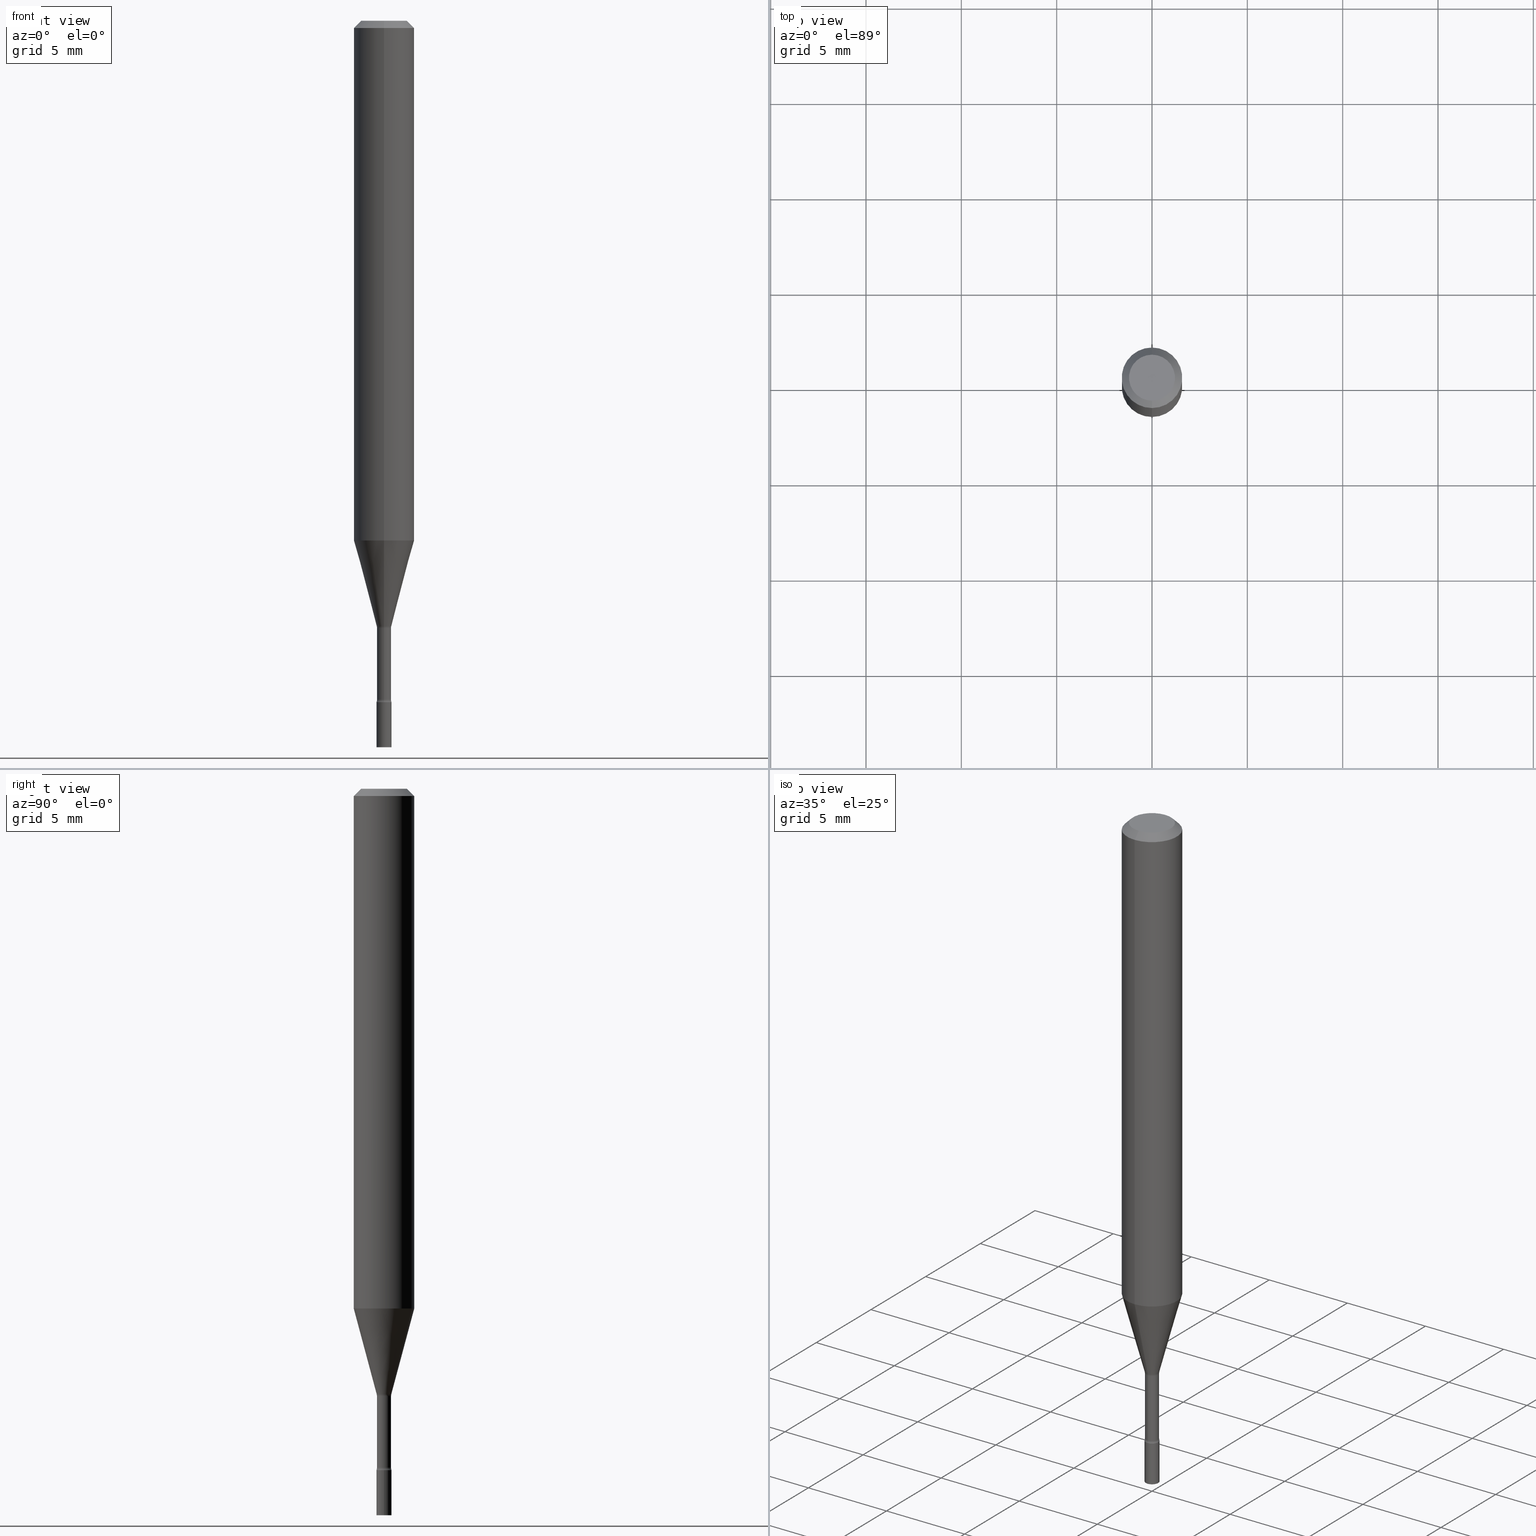
[diagram: canonical four-view strip — front | top / right | iso, engineering-drawing reading convention]
A machine part, canonical four-view strip (front | top / right | iso — engineering-drawing reading convention). The complete STEP part file that produces these views, byte-faithful:
ISO-10303-21;
HEADER;
FILE_DESCRIPTION (( 'STEP AP203' ),
    '1' );
FILE_NAME ('04271.STEP',
    '2024-03-08T22:44:06',
    ( '' ),
    ( '' ),
    'SwSTEP 2.0',
    'SolidWorks 2023',
    '' );
FILE_SCHEMA (( 'CONFIG_CONTROL_DESIGN' ));
ENDSEC;

DATA;
#1 = DATE_AND_TIME ( #243, #246 ) ;
#2 = CIRCLE ( 'NONE', #154, 0.01500000000000001853 ) ;
#3 = CC_DESIGN_SECURITY_CLASSIFICATION ( #222, ( #389 ) ) ;
#4 = CYLINDRICAL_SURFACE ( 'NONE', #395, 0.01549999999999999989 ) ;
#5 = CARTESIAN_POINT ( 'NONE',  ( 3.066547987305471395E-29, -4.378241368784279827E-15, -1.253974787463811191 ) ) ;
#6 = ADVANCED_FACE ( 'NONE', ( #87 ), #211, .T. ) ;
#7 = DIRECTION ( 'NONE',  ( 2.438088387897960049E-29, -3.491481338843145188E-15, -1.000000000000000000 ) ) ;
#8 = COORDINATED_UNIVERSAL_TIME_OFFSET ( 5, 0, .BEHIND. ) ;
#9 = CARTESIAN_POINT ( 'NONE',  ( -4.364351673553655384E-16, -0.06250000000000376088, -1.073048163777072794 ) ) ;
#10 = CIRCLE ( 'NONE', #74, 0.01549999999999999989 ) ;
#11 = EDGE_LOOP ( 'NONE', ( #61, #32, #249, #147 ) ) ;
#12 = CIRCLE ( 'NONE', #125, 0.04749999999999999362 ) ;
#13 = LINE ( 'NONE', #342, #381 ) ;
#14 = ORIENTED_EDGE ( 'NONE', *, *, #507, .T. ) ;
#15 = FACE_OUTER_BOUND ( 'NONE', #385, .T. ) ;
#16 = ORIENTED_EDGE ( 'NONE', *, *, #250, .F. ) ;
#17 = EDGE_CURVE ( 'NONE', #76, #289, #215, .T. ) ;
#18 = FACE_OUTER_BOUND ( 'NONE', #261, .T. ) ;
#19 = AXIS2_PLACEMENT_3D ( 'NONE', #72, #280, #197 ) ;
#20 = LOCAL_TIME ( 17, 44, 6.000000000000000000, #349 ) ;
#21 = PRODUCT_DEFINITION_SHAPE ( 'NONE', 'NONE',  #453 ) ;
#22 = DIRECTION ( 'NONE',  ( -2.445462235734121314E-29, 3.491490748102966351E-15, 1.000000000000000000 ) ) ;
#23 = EDGE_LOOP ( 'NONE', ( #198, #497, #335, #399 ) ) ;
#24 = DIRECTION ( 'NONE',  ( -6.982962677686265922E-15, -1.000000000000000000, 4.370956789862821150E-15 ) ) ;
#25 = EDGE_CURVE ( 'NONE', #263, #91, #457, .T. ) ;
#26 = CARTESIAN_POINT ( 'NONE',  ( 3.668193353601189100E-31, -5.237236122154459880E-17, -0.01500000000000003067 ) ) ;
#27 = CLOSED_SHELL ( 'NONE', ( #95, #158, #92, #377, #454, #398, #194, #402, #474, #151, #258, #219, #104, #368 ) ) ;
#28 = ORIENTED_EDGE ( 'NONE', *, *, #344, .F. ) ;
#29 = AXIS2_PLACEMENT_3D ( 'NONE', #128, #406, #169 ) ;
#30 = CC_DESIGN_APPROVAL ( #383, ( #389 ) ) ;
#31 = DIRECTION ( 'NONE',  ( 1.000000000000000000, -6.982962677686238312E-15, 0.000000000000000000 ) ) ;
#32 = ORIENTED_EDGE ( 'NONE', *, *, #467, .T. ) ;
#33 = DIRECTION ( 'NONE',  ( -2.445462235734121314E-29, 3.491490748102966351E-15, 1.000000000000000000 ) ) ;
#34 = EDGE_CURVE ( 'NONE', #214, #167, #302, .T. ) ;
#35 = DIRECTION ( 'NONE',  ( -2.445462235734121314E-29, 3.491490748102966351E-15, 1.000000000000000000 ) ) ;
#36 = CONICAL_SURFACE ( 'NONE', #295, 0.01506111260566398054, 0.2617993877991501295 ) ;
#37 = DIRECTION ( 'NONE',  ( 1.000000000000000000, -6.982962677686266711E-15, 4.876176775795935232E-29 ) ) ;
#38 = CC_DESIGN_APPROVAL ( #234, ( #222 ) ) ;
#39 = CARTESIAN_POINT ( 'NONE',  ( -4.287811248607203282E-16, -0.06250000000000005551, -0.01499999999999981209 ) ) ;
#40 = PERSON_AND_ORGANIZATION ( #127, #374 ) ;
#41 = PRODUCT_RELATED_PRODUCT_CATEGORY ( 'detail', '', ( #237 ) ) ;
#42 = CARTESIAN_POINT ( 'NONE',  ( 4.440892098500886486E-16, 0.06249999999999623218, -1.073048163777073238 ) ) ;
#43 = APPLICATION_CONTEXT ( 'configuration controlled 3d designs of mechanical parts and assemblies' ) ;
#44 = CYLINDRICAL_SURFACE ( 'NONE', #183, 0.01455000000000000737 ) ;
#45 = AXIS2_PLACEMENT_3D ( 'NONE', #69, #33, #316 ) ;
#46 = CIRCLE ( 'NONE', #89, 0.01500000000000002720 ) ;
#47 = DIRECTION ( 'NONE',  ( 1.000000000000000000, -6.982962677686266711E-15, 4.876176775795935232E-29 ) ) ;
#48 = CARTESIAN_POINT ( 'NONE',  ( -1.016021069603009763E-16, -0.01455000000000490450, -1.401746667724196538 ) ) ;
#49 = ADVANCED_BREP_SHAPE_REPRESENTATION ( '04271', ( #182, #181, #423 ), #265 ) ;
#50 = EDGE_CURVE ( 'NONE', #167, #186, #206, .T. ) ;
#51 = APPROVAL_ROLE ( '' ) ;
#52 = DIRECTION ( 'NONE',  ( -6.982962677686265922E-15, -1.000000000000000000, 0.000000000000000000 ) ) ;
#53 = APPLICATION_CONTEXT ( 'configuration controlled 3d designs of mechanical parts and assemblies' ) ;
#54 = APPROVAL_DATE_TIME ( #419, #234 ) ;
#55 = CARTESIAN_POINT ( 'NONE',  ( 3.840629472727447874E-16, 0.04749999999999999362, -1.947592745229184365E-16 ) ) ;
#56 = AXIS2_PLACEMENT_3D ( 'NONE', #425, #62, #307 ) ;
#57 = AXIS2_PLACEMENT_3D ( 'NONE', #511, #235, #392 ) ;
#58 = EDGE_LOOP ( 'NONE', ( #190, #85, #321, #257 ) ) ;
#59 = CARTESIAN_POINT ( 'NONE',  ( 0.01549999999999999989, -1.082359215041371286E-16, 7.558074002483699918E-31 ) ) ;
#60 = EDGE_CURVE ( 'NONE', #247, #289, #203, .T. ) ;
#61 = ORIENTED_EDGE ( 'NONE', *, *, #119, .F. ) ;
#62 = DIRECTION ( 'NONE',  ( -2.445462235734121034E-29, 3.491490748102966351E-15, 1.000000000000000000 ) ) ;
#63 = ORIENTED_EDGE ( 'NONE', *, *, #305, .T. ) ;
#64 = ORIENTED_EDGE ( 'NONE', *, *, #462, .F. ) ;
#65 = DIRECTION ( 'NONE',  ( 1.000000000000000000, -6.982962677686238312E-15, 0.000000000000000000 ) ) ;
#66 = AXIS2_PLACEMENT_3D ( 'NONE', #111, #238, #313 ) ;
#67 = EDGE_LOOP ( 'NONE', ( #160, #501, #149, #360 ) ) ;
#68 = EDGE_CURVE ( 'NONE', #348, #110, #82, .T. ) ;
#69 = CARTESIAN_POINT ( 'NONE',  ( 3.066556226485386764E-29, -4.378229569809696209E-15, -1.253974787463811191 ) ) ;
#70 = EDGE_LOOP ( 'NONE', ( #422, #64, #292, #99 ) ) ;
#71 = CARTESIAN_POINT ( 'NONE',  ( 0.000000000000000000, 0.000000000000000000, 0.000000000000000000 ) ) ;
#72 = CARTESIAN_POINT ( 'NONE',  ( 3.668193353601189100E-31, -5.237236122154459880E-17, -0.01500000000000003067 ) ) ;
#73 = ORIENTED_EDGE ( 'NONE', *, *, #344, .T. ) ;
#74 = AXIS2_PLACEMENT_3D ( 'NONE', #227, #148, #52 ) ;
#75 = CIRCLE ( 'NONE', #288, 0.06250000000000000000 ) ;
#76 = VERTEX_POINT ( 'NONE', #327 ) ;
#77 = DIRECTION ( 'NONE',  ( 6.982962677686265922E-15, 1.000000000000000000, -3.483106191921935554E-15 ) ) ;
#78 = LINE ( 'NONE', #278, #98 ) ;
#79 = DIRECTION ( 'NONE',  ( 1.000000000000000000, 0.000000000000000000, 0.000000000000000000 ) ) ;
#80 = CARTESIAN_POINT ( 'NONE',  ( -1.016021069603045508E-16, -0.01455000000000438234, -1.253974787463811191 ) ) ;
#81 = ADVANCED_FACE ( 'NONE', ( #412 ), #4, .T. ) ;
#82 = CIRCLE ( 'NONE', #230, 0.01455000000000000390 ) ;
#83 = DIRECTION ( 'NONE',  ( -2.445462235734121314E-29, 3.491490748102966351E-15, 1.000000000000000000 ) ) ;
#84 = EDGE_LOOP ( 'NONE', ( #506, #161, #163, #282 ) ) ;
#85 = ORIENTED_EDGE ( 'NONE', *, *, #34, .T. ) ;
#86 = APPROVAL_DATE_TIME ( #476, #383 ) ;
#87 = FACE_OUTER_BOUND ( 'NONE', #359, .T. ) ;
#88 = VECTOR ( 'NONE', #105, 39.37007874015748143 ) ;
#89 = AXIS2_PLACEMENT_3D ( 'NONE', #334, #320, #120 ) ;
#90 = DIRECTION ( 'NONE',  ( -6.982962677686265922E-15, -1.000000000000000000, 0.000000000000000000 ) ) ;
#91 = VERTEX_POINT ( 'NONE', #48 ) ;
#92 = ADVANCED_FACE ( 'NONE', ( #517 ), #123, .F. ) ;
#93 = DIRECTION ( 'NONE',  ( -2.445462235734121314E-29, 3.491490748102966351E-15, 1.000000000000000000 ) ) ;
#94 = CARTESIAN_POINT ( 'NONE',  ( 3.057054004295166531E-29, -4.364686404263155979E-15, -1.250092501787273269 ) ) ;
#95 = ADVANCED_FACE ( 'NONE', ( #175 ), #427, .F. ) ;
#96 = VECTOR ( 'NONE', #332, 39.37007874015748143 ) ;
#97 = CARTESIAN_POINT ( 'NONE',  ( -1.051711872097511524E-16, -0.01506111260566834510, -1.250092501787273269 ) ) ;
#98 = VECTOR ( 'NONE', #150, 39.37007874015748143 ) ;
#99 = ORIENTED_EDGE ( 'NONE', *, *, #60, .T. ) ;
#100 = DIRECTION ( 'NONE',  ( -6.982962677686263555E-15, -1.000000000000000000, 0.000000000000000000 ) ) ;
#101 = ORIENTED_EDGE ( 'NONE', *, *, #384, .T. ) ;
#102 = ORIENTED_EDGE ( 'NONE', *, *, #420, .F. ) ;
#103 = DIRECTION ( 'NONE',  ( -2.445468806185136597E-29, 3.491481338843145583E-15, 1.000000000000000000 ) ) ;
#104 = ADVANCED_FACE ( 'NONE', ( #378 ), #44, .T. ) ;
#105 = DIRECTION ( 'NONE',  ( -2.445462235734121314E-29, 3.491490748102966351E-15, 1.000000000000000000 ) ) ;
#106 = CIRCLE ( 'NONE', #388, 0.01549999999999999989 ) ;
#107 = CARTESIAN_POINT ( 'NONE',  ( 4.364351673553919652E-16, 0.06249999999999995143, -0.01500000000000024751 ) ) ;
#108 = EDGE_LOOP ( 'NONE', ( #207, #73, #466, #450 ) ) ;
#109 = CYLINDRICAL_SURFACE ( 'NONE', #442, 0.01549999999999999989 ) ;
#110 = VERTEX_POINT ( 'NONE', #80 ) ;
#111 = CARTESIAN_POINT ( 'NONE',  ( 3.057054004295166531E-29, -4.364686404263155979E-15, -1.250092501787273269 ) ) ;
#112 = EDGE_CURVE ( 'NONE', #117, #186, #358, .T. ) ;
#113 = AXIS2_PLACEMENT_3D ( 'NONE', #456, #418, #345 ) ;
#114 = LOCAL_TIME ( 17, 44, 6.000000000000000000, #8 ) ;
#115 = DIRECTION ( 'NONE',  ( -2.445468806185136597E-29, 3.491481338843145583E-15, 1.000000000000000000 ) ) ;
#116 =( NAMED_UNIT ( * ) PLANE_ANGLE_UNIT ( ) SI_UNIT ( $, .RADIAN. ) );
#117 = VERTEX_POINT ( 'NONE', #42 ) ;
#118 = DIRECTION ( 'NONE',  ( -6.982962677686266711E-15, -1.000000000000000000, 0.000000000000000000 ) ) ;
#119 = EDGE_CURVE ( 'NONE', #494, #366, #323, .T. ) ;
#120 = DIRECTION ( 'NONE',  ( 7.105427357601001859E-15, 1.000000000000000000, 0.000000000000000000 ) ) ;
#121 = CARTESIAN_POINT ( 'NONE',  ( -0.01549999999999999989, 1.101341240428155280E-16, -7.624349389895103058E-31 ) ) ;
#122 = AXIS2_PLACEMENT_3D ( 'NONE', #480, #290, #294 ) ;
#123 = TOROIDAL_SURFACE ( 'NONE', #239, 0.02955000000000002763, 0.01500000000000001506 ) ;
#124 = CARTESIAN_POINT ( 'NONE',  ( 3.668193353601189100E-31, -5.237236122154459880E-17, -0.01500000000000003067 ) ) ;
#125 = AXIS2_PLACEMENT_3D ( 'NONE', #165, #473, #409 ) ;
#126 = ORIENTED_EDGE ( 'NONE', *, *, #60, .F. ) ;
#127 = PERSON ( 'UNSPECIFIED', 'UNSPECIFIED', 'UNSPECIFIED', ('UNSPECIFIED'), ('UNSPECIFIED'), ('UNSPECIFIED') ) ;
#128 = CARTESIAN_POINT ( 'NONE',  ( 2.624098761640674456E-29, -3.746537736096526862E-15, -1.073048163777073016 ) ) ;
#129 = ORIENTED_EDGE ( 'NONE', *, *, #17, .T. ) ;
#130 = CARTESIAN_POINT ( 'NONE',  ( -0.01549999999999999989, -4.964734001965696802E-15, -1.500000000000000222 ) ) ;
#131 = ADVANCED_FACE ( 'NONE', ( #293 ), #171, .T. ) ;
#132 = DIRECTION ( 'NONE',  ( -6.982962677686265922E-15, -1.000000000000000000, 3.491490748102966351E-15 ) ) ;
#133 = PERSON_AND_ORGANIZATION_ROLE ( 'creator' ) ;
#134 = ORIENTED_EDGE ( 'NONE', *, *, #384, .F. ) ;
#135 = VECTOR ( 'NONE', #435, 39.37007874015748143 ) ;
#136 = AXIS2_PLACEMENT_3D ( 'NONE', #317, #504, #355 ) ;
#137 = LINE ( 'NONE', #400, #373 ) ;
#138 = EDGE_LOOP ( 'NONE', ( #503, #352, #188, #394 ) ) ;
#139 = CARTESIAN_POINT ( 'NONE',  ( 2.755524256971568781E-16, 0.01506111260565961597, -1.250092501787273269 ) ) ;
#140 = DIRECTION ( 'NONE',  ( -6.982962677686265922E-15, -1.000000000000000000, 3.491490748102966351E-15 ) ) ;
#141 = ORIENTED_EDGE ( 'NONE', *, *, #520, .F. ) ;
#142 = AXIS2_PLACEMENT_3D ( 'NONE', #244, #441, #90 ) ;
#143 = CARTESIAN_POINT ( 'NONE',  ( 3.057054004295166531E-29, -4.364686404263155979E-15, -1.250092501787273269 ) ) ;
#144 = AXIS2_PLACEMENT_3D ( 'NONE', #124, #437, #439 ) ;
#145 = ORIENTED_EDGE ( 'NONE', *, *, #275, .F. ) ;
#146 = ORIENTED_EDGE ( 'NONE', *, *, #490, .F. ) ;
#147 = ORIENTED_EDGE ( 'NONE', *, *, #325, .F. ) ;
#148 = DIRECTION ( 'NONE',  ( -2.445462235734121314E-29, 3.491490748102966351E-15, 1.000000000000000000 ) ) ;
#149 = ORIENTED_EDGE ( 'NONE', *, *, #212, .F. ) ;
#150 = DIRECTION ( 'NONE',  ( -2.445462235734121314E-29, 3.491490748102966351E-15, 1.000000000000000000 ) ) ;
#151 = ADVANCED_FACE ( 'NONE', ( #448 ), #451, .F. ) ;
#152 = ORIENTED_EDGE ( 'NONE', *, *, #281, .F. ) ;
#153 = DIRECTION ( 'NONE',  ( -2.445462235734121314E-29, 3.491490748102966351E-15, 1.000000000000000000 ) ) ;
#154 = AXIS2_PLACEMENT_3D ( 'NONE', #301, #187, #100 ) ;
#155 = VERTEX_POINT ( 'NONE', #55 ) ;
#156 = CONICAL_SURFACE ( 'NONE', #173, 0.06250000000000000000, 0.7853981633974483900 ) ;
#157 = FACE_OUTER_BOUND ( 'NONE', #11, .T. ) ;
#158 = ADVANCED_FACE ( 'NONE', ( #15 ), #297, .T. ) ;
#159 = CARTESIAN_POINT ( 'NONE',  ( 3.668203209277704895E-29, -5.237222008264718177E-15, -1.500000000000000222 ) ) ;
#160 = ORIENTED_EDGE ( 'NONE', *, *, #354, .T. ) ;
#161 = ORIENTED_EDGE ( 'NONE', *, *, #228, .T. ) ;
#162 = FACE_OUTER_BOUND ( 'NONE', #270, .T. ) ;
#163 = ORIENTED_EDGE ( 'NONE', *, *, #436, .F. ) ;
#164 = EDGE_LOOP ( 'NONE', ( #300, #319 ) ) ;
#165 = CARTESIAN_POINT ( 'NONE',  ( 7.070678428697980061E-46, -1.009510920098064023E-31, -2.891346398802752133E-17 ) ) ;
#166 = EDGE_CURVE ( 'NONE', #91, #475, #2, .T. ) ;
#167 = VERTEX_POINT ( 'NONE', #97 ) ;
#168 = COORDINATED_UNIVERSAL_TIME_OFFSET ( 5, 0, .BEHIND. ) ;
#169 = DIRECTION ( 'NONE',  ( -6.982962677686265922E-15, -1.000000000000000000, 4.370956789862821150E-15 ) ) ;
#170 = PERSON_AND_ORGANIZATION ( #127, #374 ) ;
#171 = PLANE ( 'NONE',  #122 ) ;
#172 = CIRCLE ( 'NONE', #254, 0.01455000000000001084 ) ;
#173 = AXIS2_PLACEMENT_3D ( 'NONE', #26, #357, #77 ) ;
#174 = COORDINATED_UNIVERSAL_TIME_OFFSET ( 5, 0, .BEHIND. ) ;
#175 = FACE_OUTER_BOUND ( 'NONE', #23, .T. ) ;
#176 = ORIENTED_EDGE ( 'NONE', *, *, #177, .F. ) ;
#177 = EDGE_CURVE ( 'NONE', #167, #214, #274, .T. ) ;
#178 = APPLICATION_PROTOCOL_DEFINITION ( 'international standard', 'config_control_design', 1994, #43 ) ;
#179 = ORIENTED_EDGE ( 'NONE', *, *, #354, .F. ) ;
#180 = DIRECTION ( 'NONE',  ( -2.445468806185136597E-29, 3.491481338843145583E-15, 1.000000000000000000 ) ) ;
#181 = MANIFOLD_SOLID_BREP ( 'Body-Move/Copy2[2]', #27 ) ;
#182 = MANIFOLD_SOLID_BREP ( 'Body-Move/Copy2[1]', #356 ) ;
#183 = AXIS2_PLACEMENT_3D ( 'NONE', #438, #408, #477 ) ;
#184 = DIRECTION ( 'NONE',  ( -2.445462235734121314E-29, 3.491490748102966351E-15, 1.000000000000000000 ) ) ;
#185 = EDGE_CURVE ( 'NONE', #110, #348, #464, .T. ) ;
#186 = VERTEX_POINT ( 'NONE', #9 ) ;
#187 = DIRECTION ( 'NONE',  ( -1.000000000000000000, 6.982962677686265922E-15, -4.883557194083112340E-29 ) ) ;
#188 = ORIENTED_EDGE ( 'NONE', *, *, #275, .T. ) ;
#189 = DIRECTION ( 'NONE',  ( 1.839019923739599526E-15, 0.2588190451025248473, 0.9659258262890673130 ) ) ;
#190 = ORIENTED_EDGE ( 'NONE', *, *, #228, .F. ) ;
#191 = DATE_TIME_ROLE ( 'classification_date' ) ;
#192 = DIRECTION ( 'NONE',  ( -2.445462235734121314E-29, 3.491490748102966351E-15, 1.000000000000000000 ) ) ;
#193 = VECTOR ( 'NONE', #226, 39.37007874015748143 ) ;
#194 = ADVANCED_FACE ( 'NONE', ( #306 ), #36, .T. ) ;
#195 = DIRECTION ( 'NONE',  ( -1.000000000000000000, 6.982962677686265922E-15, -4.883557194083112340E-29 ) ) ;
#196 = DIRECTION ( 'NONE',  ( -2.445462235734121314E-29, 3.491490748102966351E-15, 1.000000000000000000 ) ) ;
#197 = DIRECTION ( 'NONE',  ( 6.982962677686265922E-15, 1.000000000000000000, -3.483106191921935554E-15 ) ) ;
#198 = ORIENTED_EDGE ( 'NONE', *, *, #34, .F. ) ;
#199 = AXIS2_PLACEMENT_3D ( 'NONE', #340, #262, #455 ) ;
#200 = CARTESIAN_POINT ( 'NONE',  ( -0.01549999999999999989, -4.964734001965696802E-15, -1.407000000000000028 ) ) ;
#201 = FACE_OUTER_BOUND ( 'NONE', #84, .T. ) ;
#202 = APPROVAL_STATUS ( 'not_yet_approved' ) ;
#203 = CIRCLE ( 'NONE', #213, 0.06250000000000000000 ) ;
#204 = LOCAL_TIME ( 17, 44, 6.000000000000000000, #168 ) ;
#205 = CALENDAR_DATE ( 2024, 8, 3 ) ;
#206 = LINE ( 'NONE', #209, #245 ) ;
#207 = ORIENTED_EDGE ( 'NONE', *, *, #25, .F. ) ;
#208 = PERSON_AND_ORGANIZATION_ROLE ( 'creator' ) ;
#209 = CARTESIAN_POINT ( 'NONE',  ( -1.051711872097511524E-16, -0.01506111260566834510, -1.250092501787273269 ) ) ;
#210 = LENGTH_MEASURE_WITH_UNIT ( LENGTH_MEASURE( 0.02539999999999999897 ), #370 );
#211 = PLANE ( 'NONE',  #328 ) ;
#212 = EDGE_CURVE ( 'NONE', #393, #366, #413, .T. ) ;
#213 = AXIS2_PLACEMENT_3D ( 'NONE', #256, #369, #416 ) ;
#214 = VERTEX_POINT ( 'NONE', #139 ) ;
#215 = LINE ( 'NONE', #39, #96 ) ;
#216 = ORIENTED_EDGE ( 'NONE', *, *, #310, .F. ) ;
#217 = CARTESIAN_POINT ( 'NONE',  ( 3.427918539985668469E-29, -4.894185521543194921E-15, -1.401746667724196538 ) ) ;
#218 = CC_DESIGN_PERSON_AND_ORGANIZATION_ASSIGNMENT ( #487, #296, ( #222 ) ) ;
#219 = ADVANCED_FACE ( 'NONE', ( #18 ), #286, .F. ) ;
#220 = SHAPE_DEFINITION_REPRESENTATION ( #21, #49 ) ;
#221 = AXIS2_PLACEMENT_3D ( 'NONE', #502, #195, #488 ) ;
#222 = SECURITY_CLASSIFICATION ( '', '', #379 ) ;
#223 = LINE ( 'NONE', #460, #440 ) ;
#224 = ORIENTED_EDGE ( 'NONE', *, *, #281, .T. ) ;
#225 = PERSON_AND_ORGANIZATION_ROLE ( 'design_supplier' ) ;
#226 = DIRECTION ( 'NONE',  ( -2.445468806185136877E-29, 3.491481338843145188E-15, 1.000000000000000000 ) ) ;
#227 = CARTESIAN_POINT ( 'NONE',  ( 3.440765365677909320E-29, -4.912527482580873462E-15, -1.407000000000000028 ) ) ;
#228 = EDGE_CURVE ( 'NONE', #214, #117, #223, .T. ) ;
#229 = CARTESIAN_POINT ( 'NONE',  ( 4.440892098500889444E-16, 0.06249999999999995143, -0.01500000000000024751 ) ) ;
#230 = AXIS2_PLACEMENT_3D ( 'NONE', #5, #372, #251 ) ;
#231 = AXIS2_PLACEMENT_3D ( 'NONE', #71, #196, #468 ) ;
#232 = DIRECTION ( 'NONE',  ( -6.982962677686265922E-15, -1.000000000000000000, 3.491490748102966351E-15 ) ) ;
#233 = ORIENTED_EDGE ( 'NONE', *, *, #467, .F. ) ;
#234 = APPROVAL ( #298, 'UNSPECIFIED' ) ;
#235 = DIRECTION ( 'NONE',  ( -2.445468806185136597E-29, 3.491481338843145583E-15, 1.000000000000000000 ) ) ;
#236 = EDGE_CURVE ( 'NONE', #514, #393, #426, .T. ) ;
#237 = PRODUCT ( '04271', '04271', '', ( #255 ) ) ;
#238 = DIRECTION ( 'NONE',  ( -2.445462235734121314E-29, 3.491490748102966351E-15, 1.000000000000000000 ) ) ;
#239 = AXIS2_PLACEMENT_3D ( 'NONE', #375, #338, #485 ) ;
#240 = APPROVAL_PERSON_ORGANIZATION ( #40, #324, #407 ) ;
#241 = UNCERTAINTY_MEASURE_WITH_UNIT (LENGTH_MEASURE( 1.000000000000000082E-05 ), #411, 'distance_accuracy_value', 'NONE');
#242 = CARTESIAN_POINT ( 'NONE',  ( 0.000000000000000000, 0.000000000000000000, 0.000000000000000000 ) ) ;
#243 = CALENDAR_DATE ( 2024, 8, 3 ) ;
#244 = CARTESIAN_POINT ( 'NONE',  ( 3.057054004295166531E-29, -4.364686404263155979E-15, -1.250092501787273269 ) ) ;
#245 = VECTOR ( 'NONE', #449, 39.37007874015749564 ) ;
#246 = LOCAL_TIME ( 17, 44, 6.000000000000000000, #518 ) ;
#247 = VERTEX_POINT ( 'NONE', #229 ) ;
#248 = DATE_TIME_ROLE ( 'creation_date' ) ;
#249 = ORIENTED_EDGE ( 'NONE', *, *, #236, .T. ) ;
#250 = EDGE_CURVE ( 'NONE', #475, #314, #106, .T. ) ;
#251 = DIRECTION ( 'NONE',  ( -6.982962677686266711E-15, -1.000000000000000000, 0.000000000000000000 ) ) ;
#252 = CARTESIAN_POINT ( 'NONE',  ( 0.01549999999999999989, -5.345457929768855342E-15, -1.500000000000000222 ) ) ;
#253 = DIRECTION ( 'NONE',  ( -1.000000000000000000, 6.982962677686265922E-15, -4.876176775795935793E-29 ) ) ;
#254 = AXIS2_PLACEMENT_3D ( 'NONE', #387, #192, #380 ) ;
#255 = MECHANICAL_CONTEXT ( 'NONE', #53, 'mechanical' ) ;
#256 = CARTESIAN_POINT ( 'NONE',  ( 3.668193353601189100E-31, -5.237236122154459880E-17, -0.01500000000000003067 ) ) ;
#257 = ORIENTED_EDGE ( 'NONE', *, *, #112, .F. ) ;
#258 = ADVANCED_FACE ( 'NONE', ( #493 ), #390, .F. ) ;
#259 = CARTESIAN_POINT ( 'NONE',  ( 1.067590460479894681E-16, 0.01454999999999511892, -1.401746667724196538 ) ) ;
#260 = PERSON_AND_ORGANIZATION ( #127, #374 ) ;
#261 = EDGE_LOOP ( 'NONE', ( #28, #152, #470, #308 ) ) ;
#262 = DIRECTION ( 'NONE',  ( -2.445462235734121314E-29, 3.491490748102966351E-15, 1.000000000000000000 ) ) ;
#263 = VERTEX_POINT ( 'NONE', #259 ) ;
#264 = AXIS2_PLACEMENT_3D ( 'NONE', #465, #353, #396 ) ;
#265 =( GEOMETRIC_REPRESENTATION_CONTEXT ( 3 ) GLOBAL_UNCERTAINTY_ASSIGNED_CONTEXT ( ( #241 ) ) GLOBAL_UNIT_ASSIGNED_CONTEXT ( ( #411, #116, #326 ) ) REPRESENTATION_CONTEXT ( 'NONE', 'WORKASPACE' ) );
#266 = DIRECTION ( 'NONE',  ( -2.445462235734121314E-29, 3.491490748102966351E-15, 1.000000000000000000 ) ) ;
#267 = CALENDAR_DATE ( 2024, 8, 3 ) ;
#268 = DIRECTION ( 'NONE',  ( -2.445462235734121314E-29, 3.491490748102966351E-15, 1.000000000000000000 ) ) ;
#269 = EDGE_CURVE ( 'NONE', #314, #475, #10, .T. ) ;
#270 = EDGE_LOOP ( 'NONE', ( #336, #341, #271, #134 ) ) ;
#271 = ORIENTED_EDGE ( 'NONE', *, *, #507, .F. ) ;
#272 = DIRECTION ( 'NONE',  ( -6.982962677686265922E-15, -1.000000000000000000, 0.000000000000000000 ) ) ;
#273 = FACE_OUTER_BOUND ( 'NONE', #403, .T. ) ;
#274 = CIRCLE ( 'NONE', #303, 0.01506111260566398054 ) ;
#275 = EDGE_CURVE ( 'NONE', #91, #110, #13, .T. ) ;
#276 = DIRECTION ( 'NONE',  ( -2.445468806185136597E-29, 3.491481338843145583E-15, 1.000000000000000000 ) ) ;
#277 = LINE ( 'NONE', #431, #88 ) ;
#278 = CARTESIAN_POINT ( 'NONE',  ( 1.033839680530946048E-16, 0.01455000000000000737, -5.080119038489818639E-17 ) ) ;
#279 = TOROIDAL_SURFACE ( 'NONE', #45, 0.02955000000000000335, 0.01500000000000002720 ) ;
#280 = DIRECTION ( 'NONE',  ( 2.445462235734121314E-29, -3.491490748102966351E-15, -1.000000000000000000 ) ) ;
#281 = EDGE_CURVE ( 'NONE', #91, #263, #172, .T. ) ;
#282 = ORIENTED_EDGE ( 'NONE', *, *, #50, .F. ) ;
#283 = DIRECTION ( 'NONE',  ( -2.445462235734121314E-29, 3.491490748102966351E-15, 1.000000000000000000 ) ) ;
#284 = PERSON_AND_ORGANIZATION ( #127, #374 ) ;
#285 = DIRECTION ( 'NONE',  ( -2.445468806185136877E-29, 3.491481338843145188E-15, 1.000000000000000000 ) ) ;
#286 = TOROIDAL_SURFACE ( 'NONE', #199, 0.02955000000000002763, 0.01500000000000001506 ) ;
#287 = ORIENTED_EDGE ( 'NONE', *, *, #337, .T. ) ;
#288 = AXIS2_PLACEMENT_3D ( 'NONE', #512, #35, #24 ) ;
#289 = VERTEX_POINT ( 'NONE', #351 ) ;
#290 = DIRECTION ( 'NONE',  ( -2.438088387897960049E-29, 3.491481338843145188E-15, 1.000000000000000000 ) ) ;
#291 = ORIENTED_EDGE ( 'NONE', *, *, #269, .F. ) ;
#292 = ORIENTED_EDGE ( 'NONE', *, *, #420, .T. ) ;
#293 = FACE_OUTER_BOUND ( 'NONE', #164, .T. ) ;
#294 = DIRECTION ( 'NONE',  ( 1.000000000000000000, -6.982962677686265922E-15, 4.876176775795935793E-29 ) ) ;
#295 = AXIS2_PLACEMENT_3D ( 'NONE', #94, #266, #272 ) ;
#296 = PERSON_AND_ORGANIZATION_ROLE ( 'classification_officer' ) ;
#297 = CYLINDRICAL_SURFACE ( 'NONE', #365, 0.01455000000000000737 ) ;
#298 = APPROVAL_STATUS ( 'not_yet_approved' ) ;
#299 = DIRECTION ( 'NONE',  ( -6.982962677686265922E-15, -1.000000000000000000, 0.000000000000000000 ) ) ;
#300 = ORIENTED_EDGE ( 'NONE', *, *, #212, .T. ) ;
#301 = CARTESIAN_POINT ( 'NONE',  ( -2.063465471255950731E-16, -0.02955000000000492302, -1.401746667724196538 ) ) ;
#302 = CIRCLE ( 'NONE', #142, 0.01506111260566398054 ) ;
#303 = AXIS2_PLACEMENT_3D ( 'NONE', #143, #93, #299 ) ;
#304 = CC_DESIGN_PERSON_AND_ORGANIZATION_ASSIGNMENT ( #170, #208, ( #453 ) ) ;
#305 = EDGE_CURVE ( 'NONE', #167, #110, #471, .T. ) ;
#306 = FACE_OUTER_BOUND ( 'NONE', #58, .T. ) ;
#307 = DIRECTION ( 'NONE',  ( -6.982962677686265922E-15, -1.000000000000000000, 3.491490748102966351E-15 ) ) ;
#308 = ORIENTED_EDGE ( 'NONE', *, *, #250, .T. ) ;
#309 = CARTESIAN_POINT ( 'NONE',  ( 3.440774610302487541E-29, -4.912514243752305891E-15, -1.407000000000000028 ) ) ;
#310 = EDGE_CURVE ( 'NONE', #117, #247, #137, .T. ) ;
#311 = DIRECTION ( 'NONE',  ( -2.445462235734121314E-29, 3.491490748102966351E-15, 1.000000000000000000 ) ) ;
#312 = ORIENTED_EDGE ( 'NONE', *, *, #112, .T. ) ;
#313 = DIRECTION ( 'NONE',  ( -6.982962677686265922E-15, -1.000000000000000000, 0.000000000000000000 ) ) ;
#314 = VERTEX_POINT ( 'NONE', #472 ) ;
#315 = CC_DESIGN_PERSON_AND_ORGANIZATION_ASSIGNMENT ( #260, #225, ( #389 ) ) ;
#316 = DIRECTION ( 'NONE',  ( -6.982962677686265922E-15, -1.000000000000000000, 3.491490748102966351E-15 ) ) ;
#317 = CARTESIAN_POINT ( 'NONE',  ( 7.070678428697980061E-46, -1.009510920098064023E-31, -2.891346398802752133E-17 ) ) ;
#318 = AXIS2_PLACEMENT_3D ( 'NONE', #309, #115, #391 ) ;
#319 = ORIENTED_EDGE ( 'NONE', *, *, #325, .T. ) ;
#320 = DIRECTION ( 'NONE',  ( 1.000000000000000000, -7.105427357601001070E-15, 4.926315623772281573E-29 ) ) ;
#321 = ORIENTED_EDGE ( 'NONE', *, *, #50, .T. ) ;
#322 = PERSON_AND_ORGANIZATION ( #127, #374 ) ;
#323 = LINE ( 'NONE', #121, #339 ) ;
#324 = APPROVAL ( #202, 'UNSPECIFIED' ) ;
#325 = EDGE_CURVE ( 'NONE', #366, #393, #479, .T. ) ;
#326 =( NAMED_UNIT ( * ) SI_UNIT ( $, .STERADIAN. ) SOLID_ANGLE_UNIT ( ) );
#327 = CARTESIAN_POINT ( 'NONE',  ( -3.773273898774340269E-16, -0.04749999999999999362, 1.369323465468633569E-16 ) ) ;
#328 = AXIS2_PLACEMENT_3D ( 'NONE', #444, #7, #253 ) ;
#329 = AXIS2_PLACEMENT_3D ( 'NONE', #519, #283, #132 ) ;
#330 = CIRCLE ( 'NONE', #57, 0.01549999999999999989 ) ;
#331 = CARTESIAN_POINT ( 'NONE',  ( 0.000000000000000000, 0.000000000000000000, 0.000000000000000000 ) ) ;
#332 = DIRECTION ( 'NONE',  ( -4.851104656540964275E-15, -0.7071067811865500152, -0.7071067811865450192 ) ) ;
#333 = CC_DESIGN_DATE_AND_TIME_ASSIGNMENT ( #367, #248, ( #453 ) ) ;
#334 = CARTESIAN_POINT ( 'NONE',  ( 2.099653784171402710E-16, 0.02954999999999562491, -1.253974787463811191 ) ) ;
#335 = ORIENTED_EDGE ( 'NONE', *, *, #68, .T. ) ;
#336 = ORIENTED_EDGE ( 'NONE', *, *, #436, .T. ) ;
#337 = EDGE_CURVE ( 'NONE', #263, #348, #78, .T. ) ;
#338 = DIRECTION ( 'NONE',  ( -2.445462235734121314E-29, 3.491490748102966351E-15, 1.000000000000000000 ) ) ;
#339 = VECTOR ( 'NONE', #285, 39.37007874015748143 ) ;
#340 = CARTESIAN_POINT ( 'NONE',  ( 3.427927750093484217E-29, -4.894172332144594873E-15, -1.401746667724196538 ) ) ;
#341 = ORIENTED_EDGE ( 'NONE', *, *, #310, .T. ) ;
#342 = CARTESIAN_POINT ( 'NONE',  ( -1.016021069603352178E-16, -0.01455000000000000737, 5.080119038489818639E-17 ) ) ;
#343 = ORIENTED_EDGE ( 'NONE', *, *, #462, .T. ) ;
#344 = EDGE_CURVE ( 'NONE', #263, #314, #508, .T. ) ;
#345 = DIRECTION ( 'NONE',  ( -6.982962677686266711E-15, -1.000000000000000000, 0.000000000000000000 ) ) ;
#346 = EDGE_LOOP ( 'NONE', ( #141, #176, #63, #445 ) ) ;
#347 = AXIS2_PLACEMENT_3D ( 'NONE', #217, #83, #118 ) ;
#348 = VERTEX_POINT ( 'NONE', #432 ) ;
#349 = COORDINATED_UNIVERSAL_TIME_OFFSET ( 5, 0, .BEHIND. ) ;
#350 = LOCAL_TIME ( 17, 44, 6.000000000000000000, #174 ) ;
#351 = CARTESIAN_POINT ( 'NONE',  ( -4.364351673553912750E-16, -0.06250000000000005551, -0.01499999999999981209 ) ) ;
#352 = ORIENTED_EDGE ( 'NONE', *, *, #25, .T. ) ;
#353 = DIRECTION ( 'NONE',  ( 1.000000000000000000, -7.105427357601001070E-15, 4.926315623772281573E-29 ) ) ;
#354 = EDGE_CURVE ( 'NONE', #514, #494, #433, .T. ) ;
#355 = DIRECTION ( 'NONE',  ( -6.982962677686266711E-15, -1.000000000000000000, 3.491490748102966745E-15 ) ) ;
#356 = CLOSED_SHELL ( 'NONE', ( #81, #131, #481, #6 ) ) ;
#357 = DIRECTION ( 'NONE',  ( 2.445462235734121314E-29, -3.491490748102966351E-15, -1.000000000000000000 ) ) ;
#358 = CIRCLE ( 'NONE', #29, 0.06250000000000000000 ) ;
#359 = EDGE_LOOP ( 'NONE', ( #179, #233 ) ) ;
#360 = ORIENTED_EDGE ( 'NONE', *, *, #236, .F. ) ;
#361 = CARTESIAN_POINT ( 'NONE',  ( 0.000000000000000000, 0.000000000000000000, 0.000000000000000000 ) ) ;
#362 = DESIGN_CONTEXT ( 'detailed design', #43, 'design' ) ;
#363 = LINE ( 'NONE', #107, #135 ) ;
#364 = PERSON_AND_ORGANIZATION_ROLE ( 'design_owner' ) ;
#365 = AXIS2_PLACEMENT_3D ( 'NONE', #498, #184, #140 ) ;
#366 = VERTEX_POINT ( 'NONE', #200 ) ;
#367 = DATE_AND_TIME ( #205, #204 ) ;
#368 = ADVANCED_FACE ( 'NONE', ( #505 ), #279, .F. ) ;
#369 = DIRECTION ( 'NONE',  ( -2.445462235734121314E-29, 3.491490748102966351E-15, 1.000000000000000000 ) ) ;
#370 =( LENGTH_UNIT ( ) NAMED_UNIT ( * ) SI_UNIT ( $, .METRE. ) );
#371 = DIRECTION ( 'NONE',  ( 0.000000000000000000, 0.000000000000000000, 1.000000000000000000 ) ) ;
#372 = DIRECTION ( 'NONE',  ( -2.445462235734121314E-29, 3.491490748102966351E-15, 1.000000000000000000 ) ) ;
#373 = VECTOR ( 'NONE', #311, 39.37007874015748143 ) ;
#374 = ORGANIZATION ( 'UNSPECIFIED', 'UNSPECIFIED', '' ) ;
#375 = CARTESIAN_POINT ( 'NONE',  ( 3.427927750093484217E-29, -4.894172332144594873E-15, -1.401746667724196538 ) ) ;
#376 = EDGE_LOOP ( 'NONE', ( #343, #486 ) ) ;
#377 = ADVANCED_FACE ( 'NONE', ( #463 ), #405, .T. ) ;
#378 = FACE_OUTER_BOUND ( 'NONE', #138, .T. ) ;
#379 = SECURITY_CLASSIFICATION_LEVEL ( 'unclassified' ) ;
#380 = DIRECTION ( 'NONE',  ( -6.982962677686266711E-15, -1.000000000000000000, 0.000000000000000000 ) ) ;
#381 = VECTOR ( 'NONE', #22, 39.37007874015748143 ) ;
#382 = DIRECTION ( 'NONE',  ( -6.982962677686265922E-15, -1.000000000000000000, 0.000000000000000000 ) ) ;
#383 = APPROVAL ( #443, 'UNSPECIFIED' ) ;
#384 = EDGE_CURVE ( 'NONE', #186, #289, #277, .T. ) ;
#385 = EDGE_LOOP ( 'NONE', ( #224, #287, #513, #145 ) ) ;
#386 = CARTESIAN_POINT ( 'NONE',  ( 3.440765365677909320E-29, -4.912527482580873462E-15, -1.407000000000000028 ) ) ;
#387 = CARTESIAN_POINT ( 'NONE',  ( 3.427918539985668469E-29, -4.894185521543194921E-15, -1.401746667724196538 ) ) ;
#388 = AXIS2_PLACEMENT_3D ( 'NONE', #386, #268, #382 ) ;
#389 = PRODUCT_DEFINITION_FORMATION_WITH_SPECIFIED_SOURCE ( 'ANY', '', #237, .NOT_KNOWN. ) ;
#390 = PLANE ( 'NONE',  #56 ) ;
#391 = DIRECTION ( 'NONE',  ( 1.000000000000000000, -6.982962677686238312E-15, 0.000000000000000000 ) ) ;
#392 = DIRECTION ( 'NONE',  ( 1.000000000000000000, -6.982962677686238312E-15, 0.000000000000000000 ) ) ;
#393 = VERTEX_POINT ( 'NONE', #401 ) ;
#394 = ORIENTED_EDGE ( 'NONE', *, *, #68, .F. ) ;
#395 = AXIS2_PLACEMENT_3D ( 'NONE', #410, #180, #47 ) ;
#396 = DIRECTION ( 'NONE',  ( 7.105427357601001859E-15, 1.000000000000000000, 0.000000000000000000 ) ) ;
#397 = CIRCLE ( 'NONE', #136, 0.04749999999999999362 ) ;
#398 = ADVANCED_FACE ( 'NONE', ( #201 ), #515, .T. ) ;
#399 = ORIENTED_EDGE ( 'NONE', *, *, #305, .F. ) ;
#400 = CARTESIAN_POINT ( 'NONE',  ( 4.440892098500625669E-16, 0.06250000000000000000, -2.182181717564353969E-16 ) ) ;
#401 = CARTESIAN_POINT ( 'NONE',  ( 0.01549999999999999989, -5.020750165256442268E-15, -1.407000000000000028 ) ) ;
#402 = ADVANCED_FACE ( 'NONE', ( #273 ), #429, .T. ) ;
#403 = EDGE_LOOP ( 'NONE', ( #216, #312, #101, #126 ) ) ;
#404 = APPROVAL_DATE_TIME ( #1, #324 ) ;
#405 = CONICAL_SURFACE ( 'NONE', #19, 0.06250000000000000000, 0.7853981633974483900 ) ;
#406 = DIRECTION ( 'NONE',  ( -2.445462235734121314E-29, 3.491490748102966351E-15, 1.000000000000000000 ) ) ;
#407 = APPROVAL_ROLE ( '' ) ;
#408 = DIRECTION ( 'NONE',  ( -2.445462235734121314E-29, 3.491490748102966351E-15, 1.000000000000000000 ) ) ;
#409 = DIRECTION ( 'NONE',  ( -6.982962677686266711E-15, -1.000000000000000000, 3.491490748102966745E-15 ) ) ;
#410 = CARTESIAN_POINT ( 'NONE',  ( 0.000000000000000000, 0.000000000000000000, 0.000000000000000000 ) ) ;
#411 =( CONVERSION_BASED_UNIT ( 'INCH', #210 ) LENGTH_UNIT ( ) NAMED_UNIT ( #430 ) );
#412 = FACE_OUTER_BOUND ( 'NONE', #67, .T. ) ;
#413 = CIRCLE ( 'NONE', #458, 0.01549999999999999989 ) ;
#414 = CC_DESIGN_PERSON_AND_ORGANIZATION_ASSIGNMENT ( #415, #364, ( #237 ) ) ;
#415 = PERSON_AND_ORGANIZATION ( #127, #374 ) ;
#416 = DIRECTION ( 'NONE',  ( -6.982962677686265922E-15, -1.000000000000000000, 3.483106191921935554E-15 ) ) ;
#417 = CALENDAR_DATE ( 2024, 8, 3 ) ;
#418 = DIRECTION ( 'NONE',  ( -2.445462235734121314E-29, 3.491490748102966351E-15, 1.000000000000000000 ) ) ;
#419 = DATE_AND_TIME ( #267, #20 ) ;
#420 = EDGE_CURVE ( 'NONE', #155, #247, #363, .T. ) ;
#421 = CARTESIAN_POINT ( 'NONE',  ( 3.316907271900976096E-16, 0.04749999999999999362, -1.803025425289046297E-16 ) ) ;
#422 = ORIENTED_EDGE ( 'NONE', *, *, #17, .F. ) ;
#423 = AXIS2_PLACEMENT_3D ( 'NONE', #331, #371, #79 ) ;
#424 = CARTESIAN_POINT ( 'NONE',  ( 3.440774610302487541E-29, -4.912514243752305891E-15, -1.407000000000000028 ) ) ;
#425 = CARTESIAN_POINT ( 'NONE',  ( 1.082359215041715180E-16, 0.01549999999999508715, -1.407000000000000028 ) ) ;
#426 = LINE ( 'NONE', #59, #193 ) ;
#427 = TOROIDAL_SURFACE ( 'NONE', #329, 0.02955000000000000335, 0.01500000000000002720 ) ;
#428 = CC_DESIGN_APPROVAL ( #324, ( #453 ) ) ;
#429 = CYLINDRICAL_SURFACE ( 'NONE', #509, 0.06250000000000000000 ) ;
#430 = DIMENSIONAL_EXPONENTS ( 1.000000000000000000, 0.000000000000000000, 0.000000000000000000, 0.000000000000000000, 0.000000000000000000, 0.000000000000000000, 0.000000000000000000 ) ;
#431 = CARTESIAN_POINT ( 'NONE',  ( -4.364351673553916201E-16, -0.06250000000000000000, 2.182181717564353969E-16 ) ) ;
#432 = CARTESIAN_POINT ( 'NONE',  ( 1.033839680531288956E-16, 0.01454999999999562720, -1.253974787463811191 ) ) ;
#433 = CIRCLE ( 'NONE', #499, 0.01549999999999999989 ) ;
#434 = FACE_OUTER_BOUND ( 'NONE', #70, .T. ) ;
#435 = DIRECTION ( 'NONE',  ( 4.937700262164548042E-15, 0.7071067811865451302, -0.7071067811865499042 ) ) ;
#436 = EDGE_CURVE ( 'NONE', #186, #117, #75, .T. ) ;
#437 = DIRECTION ( 'NONE',  ( -2.445462235734121314E-29, 3.491490748102966351E-15, 1.000000000000000000 ) ) ;
#438 = CARTESIAN_POINT ( 'NONE',  ( 0.000000000000000000, 0.000000000000000000, 0.000000000000000000 ) ) ;
#439 = DIRECTION ( 'NONE',  ( -6.982962677686265922E-15, -1.000000000000000000, 3.483106191921935554E-15 ) ) ;
#440 = VECTOR ( 'NONE', #189, 39.37007874015747433 ) ;
#441 = DIRECTION ( 'NONE',  ( -2.445462235734121314E-29, 3.491490748102966351E-15, 1.000000000000000000 ) ) ;
#442 = AXIS2_PLACEMENT_3D ( 'NONE', #242, #484, #37 ) ;
#443 = APPROVAL_STATUS ( 'not_yet_approved' ) ;
#444 = CARTESIAN_POINT ( 'NONE',  ( 1.082359215041737983E-16, 0.01549999999999476276, -1.499999999999999778 ) ) ;
#445 = ORIENTED_EDGE ( 'NONE', *, *, #185, .T. ) ;
#446 = CALENDAR_DATE ( 2024, 8, 3 ) ;
#447 = CC_DESIGN_DATE_AND_TIME_ASSIGNMENT ( #495, #191, ( #222 ) ) ;
#448 = FACE_OUTER_BOUND ( 'NONE', #376, .T. ) ;
#449 = DIRECTION ( 'NONE',  ( -1.807323732225328562E-15, -0.2588190451025179639, 0.9659258262890689783 ) ) ;
#450 = ORIENTED_EDGE ( 'NONE', *, *, #166, .F. ) ;
#451 = PLANE ( 'NONE',  #491 ) ;
#452 = EDGE_LOOP ( 'NONE', ( #16, #291 ) ) ;
#453 = PRODUCT_DEFINITION ( 'UNKNOWN', '', #389, #362 ) ;
#454 = ADVANCED_FACE ( 'NONE', ( #162 ), #469, .T. ) ;
#455 = DIRECTION ( 'NONE',  ( -6.982962677686265922E-15, -1.000000000000000000, 3.491490748102966351E-15 ) ) ;
#456 = CARTESIAN_POINT ( 'NONE',  ( 3.066547987305471395E-29, -4.378241368784279827E-15, -1.253974787463811191 ) ) ;
#457 = CIRCLE ( 'NONE', #347, 0.01455000000000001084 ) ;
#458 = AXIS2_PLACEMENT_3D ( 'NONE', #424, #103, #65 ) ;
#459 = CIRCLE ( 'NONE', #144, 0.06250000000000000000 ) ;
#460 = CARTESIAN_POINT ( 'NONE',  ( 1.070156415442247132E-16, 0.01506111260565961597, -1.250092501787273269 ) ) ;
#461 = DIRECTION ( 'NONE',  ( 2.445462235734121034E-29, -3.491490748102966351E-15, -1.000000000000000000 ) ) ;
#462 = EDGE_CURVE ( 'NONE', #155, #76, #397, .T. ) ;
#463 = FACE_OUTER_BOUND ( 'NONE', #483, .T. ) ;
#464 = CIRCLE ( 'NONE', #113, 0.01455000000000000390 ) ;
#465 = CARTESIAN_POINT ( 'NONE',  ( 2.099653784171440428E-16, 0.02954999999999512877, -1.401746667724196538 ) ) ;
#466 = ORIENTED_EDGE ( 'NONE', *, *, #269, .T. ) ;
#467 = EDGE_CURVE ( 'NONE', #494, #514, #330, .T. ) ;
#468 = DIRECTION ( 'NONE',  ( -6.982962677686265922E-15, -1.000000000000000000, 3.491490748102966351E-15 ) ) ;
#469 = CYLINDRICAL_SURFACE ( 'NONE', #231, 0.06250000000000000000 ) ;
#470 = ORIENTED_EDGE ( 'NONE', *, *, #166, .T. ) ;
#471 = CIRCLE ( 'NONE', #221, 0.01500000000000002720 ) ;
#472 = CARTESIAN_POINT ( 'NONE',  ( 1.101341240428499544E-16, 0.01549999999999509062, -1.407000000000000028 ) ) ;
#473 = DIRECTION ( 'NONE',  ( -2.445462235734121314E-29, 3.491490748102966351E-15, 1.000000000000000000 ) ) ;
#474 = ADVANCED_FACE ( 'NONE', ( #434 ), #156, .T. ) ;
#475 = VERTEX_POINT ( 'NONE', #510 ) ;
#476 = DATE_AND_TIME ( #446, #350 ) ;
#477 = DIRECTION ( 'NONE',  ( -6.982962677686265922E-15, -1.000000000000000000, 3.491490748102966351E-15 ) ) ;
#478 = APPLICATION_PROTOCOL_DEFINITION ( 'international standard', 'config_control_design', 1994, #53 ) ;
#479 = CIRCLE ( 'NONE', #318, 0.01549999999999999989 ) ;
#480 = CARTESIAN_POINT ( 'NONE',  ( 3.440774610302487541E-29, -4.912514243752305891E-15, -1.407000000000000028 ) ) ;
#481 = ADVANCED_FACE ( 'NONE', ( #157 ), #109, .T. ) ;
#482 = APPROVAL_ROLE ( '' ) ;
#483 = EDGE_LOOP ( 'NONE', ( #146, #129, #14, #102 ) ) ;
#484 = DIRECTION ( 'NONE',  ( -2.445468806185136597E-29, 3.491481338843145583E-15, 1.000000000000000000 ) ) ;
#485 = DIRECTION ( 'NONE',  ( -6.982962677686265922E-15, -1.000000000000000000, 3.491490748102966351E-15 ) ) ;
#486 = ORIENTED_EDGE ( 'NONE', *, *, #490, .T. ) ;
#487 = PERSON_AND_ORGANIZATION ( #127, #374 ) ;
#488 = DIRECTION ( 'NONE',  ( -6.982962677686267499E-15, -1.000000000000000000, 0.000000000000000000 ) ) ;
#489 = CC_DESIGN_PERSON_AND_ORGANIZATION_ASSIGNMENT ( #284, #133, ( #389 ) ) ;
#490 = EDGE_CURVE ( 'NONE', #76, #155, #12, .T. ) ;
#491 = AXIS2_PLACEMENT_3D ( 'NONE', #421, #461, #496 ) ;
#492 = PERSON_AND_ORGANIZATION ( #127, #374 ) ;
#493 = FACE_OUTER_BOUND ( 'NONE', #452, .T. ) ;
#494 = VERTEX_POINT ( 'NONE', #130 ) ;
#495 = DATE_AND_TIME ( #417, #114 ) ;
#496 = DIRECTION ( 'NONE',  ( 6.982962677686265922E-15, 1.000000000000000000, -3.491490748102966351E-15 ) ) ;
#497 = ORIENTED_EDGE ( 'NONE', *, *, #520, .T. ) ;
#498 = CARTESIAN_POINT ( 'NONE',  ( 0.000000000000000000, 0.000000000000000000, 0.000000000000000000 ) ) ;
#499 = AXIS2_PLACEMENT_3D ( 'NONE', #159, #276, #31 ) ;
#500 = APPROVAL_PERSON_ORGANIZATION ( #492, #234, #51 ) ;
#501 = ORIENTED_EDGE ( 'NONE', *, *, #119, .T. ) ;
#502 = CARTESIAN_POINT ( 'NONE',  ( -2.063465471255985244E-16, -0.02955000000000438526, -1.253974787463811191 ) ) ;
#503 = ORIENTED_EDGE ( 'NONE', *, *, #337, .F. ) ;
#504 = DIRECTION ( 'NONE',  ( -2.445462235734121314E-29, 3.491490748102966351E-15, 1.000000000000000000 ) ) ;
#505 = FACE_OUTER_BOUND ( 'NONE', #346, .T. ) ;
#506 = ORIENTED_EDGE ( 'NONE', *, *, #177, .T. ) ;
#507 = EDGE_CURVE ( 'NONE', #289, #247, #459, .T. ) ;
#508 = CIRCLE ( 'NONE', #264, 0.01500000000000001159 ) ;
#509 = AXIS2_PLACEMENT_3D ( 'NONE', #361, #153, #232 ) ;
#510 = CARTESIAN_POINT ( 'NONE',  ( -1.082359215041027515E-16, -0.01550000000000491610, -1.407000000000000028 ) ) ;
#511 = CARTESIAN_POINT ( 'NONE',  ( 3.668203209277704895E-29, -5.237222008264718177E-15, -1.500000000000000222 ) ) ;
#512 = CARTESIAN_POINT ( 'NONE',  ( 2.624098761640674456E-29, -3.746537736096526862E-15, -1.073048163777073016 ) ) ;
#513 = ORIENTED_EDGE ( 'NONE', *, *, #185, .F. ) ;
#514 = VERTEX_POINT ( 'NONE', #252 ) ;
#515 = CONICAL_SURFACE ( 'NONE', #66, 0.01506111260566398054, 0.2617993877991501295 ) ;
#516 = APPROVAL_PERSON_ORGANIZATION ( #322, #383, #482 ) ;
#517 = FACE_OUTER_BOUND ( 'NONE', #108, .T. ) ;
#518 = COORDINATED_UNIVERSAL_TIME_OFFSET ( 5, 0, .BEHIND. ) ;
#519 = CARTESIAN_POINT ( 'NONE',  ( 3.066556226485386764E-29, -4.378229569809696209E-15, -1.253974787463811191 ) ) ;
#520 = EDGE_CURVE ( 'NONE', #214, #348, #46, .T. ) ;
ENDSEC;
END-ISO-10303-21;
